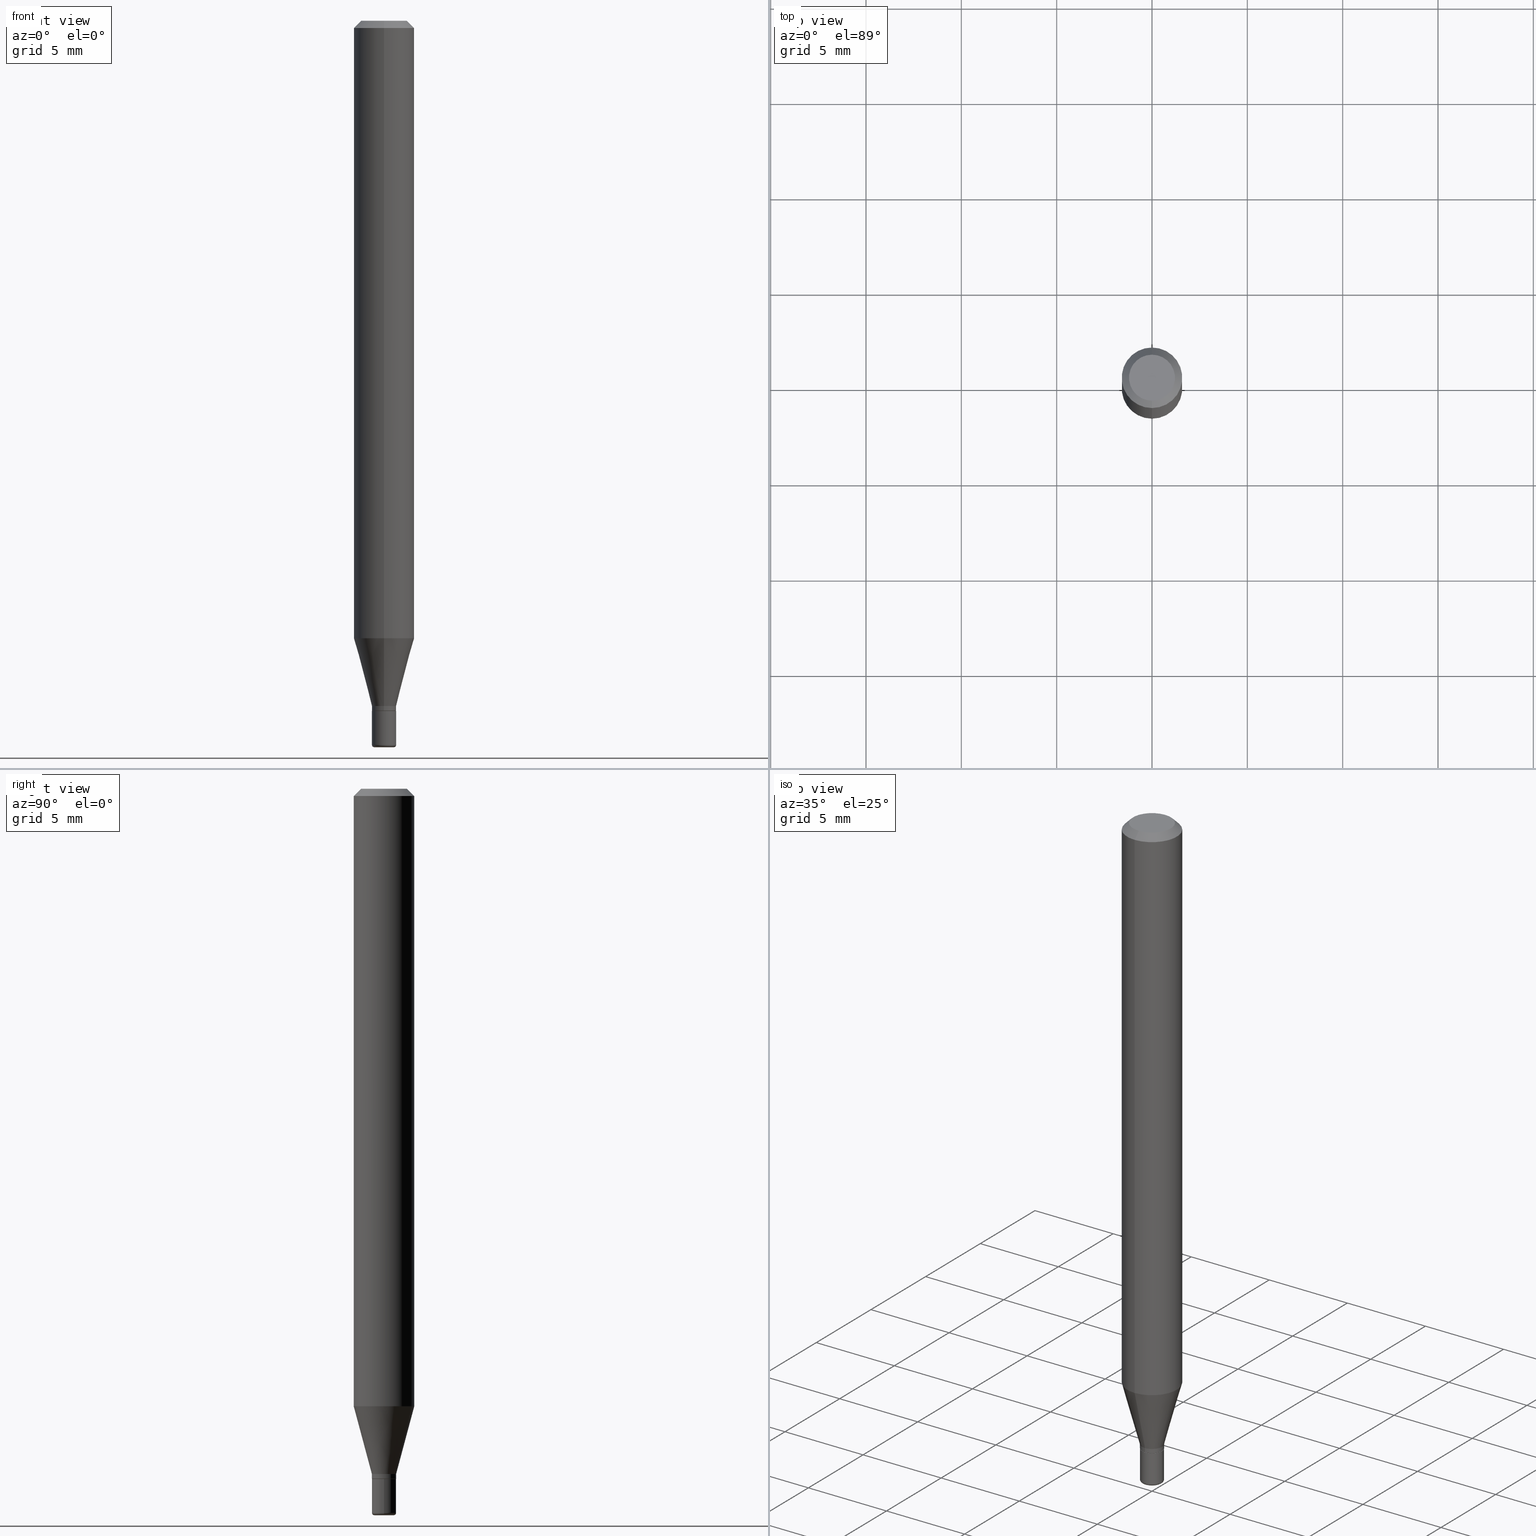
[diagram: canonical four-view strip — front | top / right | iso, engineering-drawing reading convention]
A machine part, canonical four-view strip (front | top / right | iso — engineering-drawing reading convention). The complete STEP part file that produces these views, byte-faithful:
ISO-10303-21;
HEADER;
FILE_DESCRIPTION (( 'STEP AP203' ),
    '1' );
FILE_NAME ('08521.STEP',
    '2024-02-29T19:41:16',
    ( '' ),
    ( '' ),
    'SwSTEP 2.0',
    'SolidWorks 2023',
    '' );
FILE_SCHEMA (( 'CONFIG_CONTROL_DESIGN' ));
ENDSEC;

DATA;
#1 = CARTESIAN_POINT ( 'NONE',  ( -0.02500000000000009159, 1.776356839400256973E-16, -1.229733772563731035E-30 ) ) ;
#2 = ORIENTED_EDGE ( 'NONE', *, *, #50, .T. ) ;
#3 = CIRCLE ( 'NONE', #342, 0.04750000000000000749 ) ;
#4 = AXIS2_PLACEMENT_3D ( 'NONE', #8, #80, #170 ) ;
#5 = CC_DESIGN_PERSON_AND_ORGANIZATION_ASSIGNMENT ( #497, #145, ( #191 ) ) ;
#6 =( CONVERSION_BASED_UNIT ( 'INCH', #206 ) LENGTH_UNIT ( ) NAMED_UNIT ( #450 ) );
#7 = ORIENTED_EDGE ( 'NONE', *, *, #277, .F. ) ;
#8 = CARTESIAN_POINT ( 'NONE',  ( 3.668319888636282221E-31, -5.237054916782051820E-17, -0.01499999999999970281 ) ) ;
#9 = ORIENTED_EDGE ( 'NONE', *, *, #67, .T. ) ;
#10 = DIRECTION ( 'NONE',  ( -6.982962677686265922E-15, -1.000000000000000000, 0.000000000000000000 ) ) ;
#11 = PLANE ( 'NONE',  #377 ) ;
#12 = CIRCLE ( 'NONE', #298, 0.02500000000000010200 ) ;
#13 = AXIS2_PLACEMENT_3D ( 'NONE', #132, #456, #284 ) ;
#14 = LOCAL_TIME ( 14, 41, 16.00000000000000000, #502 ) ;
#15 = DIRECTION ( 'NONE',  ( 6.982962677686265922E-15, 1.000000000000000000, -3.483106191921935554E-15 ) ) ;
#16 = ORIENTED_EDGE ( 'NONE', *, *, #187, .F. ) ;
#17 = ADVANCED_FACE ( 'NONE', ( #375 ), #514, .T. ) ;
#18 = FACE_OUTER_BOUND ( 'NONE', #400, .T. ) ;
#19 = ORIENTED_EDGE ( 'NONE', *, *, #142, .T. ) ;
#20 = COORDINATED_UNIVERSAL_TIME_OFFSET ( 5, 0, .BEHIND. ) ;
#21 = DIRECTION ( 'NONE',  ( -2.445546592424236492E-29, 3.491369944521436528E-15, 1.000000000000000000 ) ) ;
#22 = PERSON_AND_ORGANIZATION ( #287, #430 ) ;
#23 = VECTOR ( 'NONE', #476, 39.37007874015748143 ) ;
#24 = DIRECTION ( 'NONE',  ( -2.445546592424236492E-29, 3.491369944521436528E-15, 1.000000000000000000 ) ) ;
#25 = APPLICATION_PROTOCOL_DEFINITION ( 'international standard', 'config_control_design', 1994, #224 ) ;
#26 = APPROVAL ( #143, 'UNSPECIFIED' ) ;
#27 = CARTESIAN_POINT ( 'NONE',  ( 0.000000000000000000, 0.000000000000000000, 0.000000000000000000 ) ) ;
#28 = SHAPE_DEFINITION_REPRESENTATION ( #117, #319 ) ;
#29 = CARTESIAN_POINT ( 'NONE',  ( 0.000000000000000000, 0.000000000000000000, 0.000000000000000000 ) ) ;
#30 = FACE_OUTER_BOUND ( 'NONE', #155, .T. ) ;
#31 = AXIS2_PLACEMENT_3D ( 'NONE', #108, #118, #440 ) ;
#32 = ADVANCED_FACE ( 'NONE', ( #337 ), #11, .F. ) ;
#33 = DIRECTION ( 'NONE',  ( 1.000000000000000000, -6.982962677686283277E-15, 0.000000000000000000 ) ) ;
#34 = VERTEX_POINT ( 'NONE', #382 ) ;
#35 = EDGE_CURVE ( 'NONE', #439, #178, #335, .T. ) ;
#36 = DIRECTION ( 'NONE',  ( -2.445546592424236492E-29, 3.491369944521436528E-15, 1.000000000000000000 ) ) ;
#37 = VERTEX_POINT ( 'NONE', #49 ) ;
#38 = DIRECTION ( 'NONE',  ( -6.982962677686265922E-15, -1.000000000000000000, 3.491369944521436922E-15 ) ) ;
#39 = VECTOR ( 'NONE', #433, 39.37007874015748854 ) ;
#40 = AXIS2_PLACEMENT_3D ( 'NONE', #29, #306, #301 ) ;
#41 = FACE_OUTER_BOUND ( 'NONE', #449, .T. ) ;
#42 = ORIENTED_EDGE ( 'NONE', *, *, #353, .F. ) ;
#43 = DIRECTION ( 'NONE',  ( 1.000000000000000000, -6.982962677686266711E-15, 4.876176775795936353E-29 ) ) ;
#44 = DIRECTION ( 'NONE',  ( 1.000000000000000000, -6.982962677686283277E-15, 4.883557194083118506E-29 ) ) ;
#45 = DIRECTION ( 'NONE',  ( -2.445546592424236492E-29, 3.491369944521436528E-15, 1.000000000000000000 ) ) ;
#46 = CONICAL_SURFACE ( 'NONE', #231, 0.02450000000000009115, 0.7853981633972775267 ) ;
#47 = ADVANCED_FACE ( 'NONE', ( #133 ), #94, .T. ) ;
#48 = DIRECTION ( 'NONE',  ( -6.982962677686265922E-15, -1.000000000000000000, 3.483106191921935554E-15 ) ) ;
#49 = CARTESIAN_POINT ( 'NONE',  ( -3.773273898774340269E-16, -0.04750000000000000749, 4.390195805009133719E-16 ) ) ;
#50 = EDGE_CURVE ( 'NONE', #279, #136, #239, .T. ) ;
#51 = CYLINDRICAL_SURFACE ( 'NONE', #404, 0.06250000000000000000 ) ;
#52 = VERTEX_POINT ( 'NONE', #229 ) ;
#53 = CARTESIAN_POINT ( 'NONE',  ( 0.02500000000000017833, -5.394338668512662175E-15, -1.495000000000000329 ) ) ;
#54 = CARTESIAN_POINT ( 'NONE',  ( 3.484903894204537597E-29, -4.975202170943048176E-15, -1.425000000000000266 ) ) ;
#55 = AXIS2_PLACEMENT_3D ( 'NONE', #332, #323, #15 ) ;
#56 = DIRECTION ( 'NONE',  ( -2.445546592424236492E-29, 3.491369944521436528E-15, 1.000000000000000000 ) ) ;
#57 = DIRECTION ( 'NONE',  ( -6.982962677686265922E-15, -1.000000000000000000, 0.000000000000000000 ) ) ;
#58 = CYLINDRICAL_SURFACE ( 'NONE', #40, 0.06250000000000000000 ) ;
#59 = APPROVAL_ROLE ( '' ) ;
#60 = CARTESIAN_POINT ( 'NONE',  ( -1.710825856032792959E-16, -0.02450000000000506634, -1.425000000000000266 ) ) ;
#61 = AXIS2_PLACEMENT_3D ( 'NONE', #99, #475, #392 ) ;
#62 = CONICAL_SURFACE ( 'NONE', #55, 0.06250000000000000000, 0.7853981633974488341 ) ;
#63 = DIRECTION ( 'NONE',  ( 1.000000000000000000, -6.982962677686254878E-15, 0.000000000000000000 ) ) ;
#64 = PERSON_AND_ORGANIZATION ( #287, #430 ) ;
#65 = CARTESIAN_POINT ( 'NONE',  ( 0.02500000000000009159, -1.745740669421573087E-16, 1.219044193948988502E-30 ) ) ;
#66 = DIRECTION ( 'NONE',  ( -6.982962677686265922E-15, -1.000000000000000000, 0.000000000000000000 ) ) ;
#67 = EDGE_CURVE ( 'NONE', #214, #79, #347, .T. ) ;
#68 = ADVANCED_FACE ( 'NONE', ( #30 ), #58, .T. ) ;
#69 = CARTESIAN_POINT ( 'NONE',  ( 1.758593271006599579E-16, 0.02449999999999511249, -1.425000000000000266 ) ) ;
#70 = DIRECTION ( 'NONE',  ( 1.000000000000000000, -6.982962677686283277E-15, 0.000000000000000000 ) ) ;
#71 = FACE_OUTER_BOUND ( 'NONE', #518, .T. ) ;
#72 = ORIENTED_EDGE ( 'NONE', *, *, #107, .F. ) ;
#73 = DIRECTION ( 'NONE',  ( 1.000000000000000000, -6.982962677686283277E-15, 4.883557194083118506E-29 ) ) ;
#74 = CLOSED_SHELL ( 'NONE', ( #477, #324, #409, #179, #243, #124 ) ) ;
#75 = ORIENTED_EDGE ( 'NONE', *, *, #195, .F. ) ;
#76 = AXIS2_PLACEMENT_3D ( 'NONE', #237, #109, #315 ) ;
#77 = PRODUCT ( '08521', '08521', '', ( #500 ) ) ;
#78 = DIRECTION ( 'NONE',  ( -6.982962677686265922E-15, -1.000000000000000000, 0.000000000000000000 ) ) ;
#79 = VERTEX_POINT ( 'NONE', #394 ) ;
#80 = DIRECTION ( 'NONE',  ( -2.445546592424236492E-29, 3.491369944521436528E-15, 1.000000000000000000 ) ) ;
#81 = ORIENTED_EDGE ( 'NONE', *, *, #114, .T. ) ;
#82 = FACE_OUTER_BOUND ( 'NONE', #236, .T. ) ;
#83 = EDGE_LOOP ( 'NONE', ( #361, #256, #130, #75 ) ) ;
#84 = EDGE_CURVE ( 'NONE', #52, #482, #156, .T. ) ;
#85 = AXIS2_PLACEMENT_3D ( 'NONE', #129, #461, #371 ) ;
#86 = APPLICATION_CONTEXT ( 'configuration controlled 3d designs of mechanical parts and assemblies' ) ;
#87 = FACE_OUTER_BOUND ( 'NONE', #327, .T. ) ;
#88 = ORIENTED_EDGE ( 'NONE', *, *, #510, .T. ) ;
#89 = CARTESIAN_POINT ( 'NONE',  ( 3.668319888636282221E-31, -5.237054916782051820E-17, -0.01499999999999970281 ) ) ;
#90 = ORIENTED_EDGE ( 'NONE', *, *, #230, .F. ) ;
#91 = DESIGN_CONTEXT ( 'detailed design', #224, 'design' ) ;
#92 = PRODUCT_DEFINITION ( 'UNKNOWN', '', #191, #91 ) ;
#93 = EDGE_LOOP ( 'NONE', ( #406, #120, #16, #72 ) ) ;
#94 = CONICAL_SURFACE ( 'NONE', #420, 0.06250000000000000000, 0.7853981633974488341 ) ;
#95 = CIRCLE ( 'NONE', #31, 0.06250000000000000000 ) ;
#96 = DATE_AND_TIME ( #261, #499 ) ;
#97 = CARTESIAN_POINT ( 'NONE',  ( 3.483681120908324643E-29, -4.973456485970787221E-15, -1.424500000000000099 ) ) ;
#98 = PERSON_AND_ORGANIZATION ( #287, #430 ) ;
#99 = CARTESIAN_POINT ( 'NONE',  ( -0.02000000000000000042, -5.077656054418482978E-15, -1.495000000000000107 ) ) ;
#100 = PERSON_AND_ORGANIZATION ( #287, #430 ) ;
#101 = CARTESIAN_POINT ( 'NONE',  ( 3.484793048813820547E-29, -4.975360907851483175E-15, -1.425000000000000266 ) ) ;
#102 = CALENDAR_DATE ( 2024, 29, 2 ) ;
#103 = AXIS2_PLACEMENT_3D ( 'NONE', #448, #213, #44 ) ;
#104 = LOCAL_TIME ( 14, 41, 16.00000000000000000, #469 ) ;
#105 = PLANE ( 'NONE',  #289 ) ;
#106 = DIRECTION ( 'NONE',  ( -2.445546592424236773E-29, 3.491369944521436528E-15, 1.000000000000000000 ) ) ;
#107 = EDGE_CURVE ( 'NONE', #511, #365, #498, .T. ) ;
#108 = CARTESIAN_POINT ( 'NONE',  ( 3.118189523210138983E-29, -4.451664595711349999E-15, -1.275048094716167757 ) ) ;
#109 = DIRECTION ( 'NONE',  ( -2.445546592424236492E-29, 3.491369944521436528E-15, 1.000000000000000000 ) ) ;
#110 = CIRCLE ( 'NONE', #359, 0.06250000000000000000 ) ;
#111 = ORIENTED_EDGE ( 'NONE', *, *, #370, .F. ) ;
#112 = DIRECTION ( 'NONE',  ( -2.445546592424236492E-29, 3.491369944521436528E-15, 1.000000000000000000 ) ) ;
#113 = EDGE_LOOP ( 'NONE', ( #274, #111, #331, #88 ) ) ;
#114 = EDGE_CURVE ( 'NONE', #34, #511, #167, .T. ) ;
#115 = LINE ( 'NONE', #1, #23 ) ;
#116 = ORIENTED_EDGE ( 'NONE', *, *, #353, .T. ) ;
#117 = PRODUCT_DEFINITION_SHAPE ( 'NONE', 'NONE',  #92 ) ;
#118 = DIRECTION ( 'NONE',  ( -2.445546592424236492E-29, 3.491369944521436528E-15, 1.000000000000000000 ) ) ;
#119 = ADVANCED_FACE ( 'NONE', ( #468 ), #148, .T. ) ;
#120 = ORIENTED_EDGE ( 'NONE', *, *, #304, .T. ) ;
#121 = AXIS2_PLACEMENT_3D ( 'NONE', #157, #397, #38 ) ;
#122 = CARTESIAN_POINT ( 'NONE',  ( 0.02500000000000000139, -5.149934974793639843E-15, -1.425000000000000266 ) ) ;
#123 = VERTEX_POINT ( 'NONE', #472 ) ;
#124 = ADVANCED_FACE ( 'NONE', ( #258 ), #105, .F. ) ;
#125 = EDGE_CURVE ( 'NONE', #37, #123, #3, .T. ) ;
#126 = DIRECTION ( 'NONE',  ( -2.445546592424236492E-29, 3.491369944521436528E-15, 1.000000000000000000 ) ) ;
#127 = EDGE_CURVE ( 'NONE', #164, #415, #454, .T. ) ;
#128 = ORIENTED_EDGE ( 'NONE', *, *, #114, .F. ) ;
#129 = CARTESIAN_POINT ( 'NONE',  ( 3.668203209277706016E-29, -5.237222008264719754E-15, -1.500000000000000444 ) ) ;
#130 = ORIENTED_EDGE ( 'NONE', *, *, #107, .T. ) ;
#131 = UNCERTAINTY_MEASURE_WITH_UNIT (LENGTH_MEASURE( 1.000000000000000082E-05 ), #6, 'distance_accuracy_value', 'NONE');
#132 = CARTESIAN_POINT ( 'NONE',  ( -6.680732152424787162E-45, 9.537707241656864652E-31, 2.731795081361451486E-16 ) ) ;
#133 = FACE_OUTER_BOUND ( 'NONE', #113, .T. ) ;
#134 = DIRECTION ( 'NONE',  ( -2.445546592424236492E-29, 3.491369944521436528E-15, 1.000000000000000000 ) ) ;
#135 = ORIENTED_EDGE ( 'NONE', *, *, #233, .F. ) ;
#136 = VERTEX_POINT ( 'NONE', #60 ) ;
#137 = VECTOR ( 'NONE', #492, 39.37007874015748854 ) ;
#138 = CIRCLE ( 'NONE', #248, 0.02500000000000010200 ) ;
#139 = CARTESIAN_POINT ( 'NONE',  ( 0.000000000000000000, 0.000000000000000000, 0.000000000000000000 ) ) ;
#140 = CC_DESIGN_PERSON_AND_ORGANIZATION_ASSIGNMENT ( #98, #302, ( #77 ) ) ;
#141 = CARTESIAN_POINT ( 'NONE',  ( 0.02000000000000000042, -5.359423855124228949E-15, -1.495000000000000107 ) ) ;
#142 = EDGE_CURVE ( 'NONE', #178, #238, #153, .T. ) ;
#143 = APPROVAL_STATUS ( 'not_yet_approved' ) ;
#144 = FACE_OUTER_BOUND ( 'NONE', #83, .T. ) ;
#145 = PERSON_AND_ORGANIZATION_ROLE ( 'design_supplier' ) ;
#146 = DIRECTION ( 'NONE',  ( -2.445468806185136597E-29, 3.491481338843145583E-15, 1.000000000000000000 ) ) ;
#147 = CC_DESIGN_DATE_AND_TIME_ASSIGNMENT ( #96, #185, ( #437 ) ) ;
#148 = CONICAL_SURFACE ( 'NONE', #388, 0.02500000000000010200, 0.2617993877991493523 ) ;
#149 = APPROVAL_ROLE ( '' ) ;
#150 = VECTOR ( 'NONE', #208, 39.37007874015748143 ) ;
#151 = APPROVAL_PERSON_ORGANIZATION ( #64, #416, #59 ) ;
#152 = DIRECTION ( 'NONE',  ( -2.445546592424236492E-29, 3.491369944521436528E-15, 1.000000000000000000 ) ) ;
#153 = LINE ( 'NONE', #349, #358 ) ;
#154 = CARTESIAN_POINT ( 'NONE',  ( -1.710825856032792959E-16, -0.02450000000000506634, -1.425000000000000266 ) ) ;
#155 = EDGE_LOOP ( 'NONE', ( #363, #19, #242, #286 ) ) ;
#156 = CIRCLE ( 'NONE', #334, 0.02500000000000009159 ) ;
#157 = CARTESIAN_POINT ( 'NONE',  ( 0.000000000000000000, 0.000000000000000000, 0.000000000000000000 ) ) ;
#158 = CIRCLE ( 'NONE', #4, 0.06250000000000000000 ) ;
#159 = ORIENTED_EDGE ( 'NONE', *, *, #84, .T. ) ;
#160 = LINE ( 'NONE', #241, #168 ) ;
#161 = EDGE_LOOP ( 'NONE', ( #447, #441 ) ) ;
#162 = EDGE_CURVE ( 'NONE', #214, #439, #12, .T. ) ;
#163 = DIRECTION ( 'NONE',  ( -2.445546592424236492E-29, 3.491369944521436528E-15, 1.000000000000000000 ) ) ;
#164 = VERTEX_POINT ( 'NONE', #266 ) ;
#165 = CC_DESIGN_PERSON_AND_ORGANIZATION_ASSIGNMENT ( #183, #424, ( #191 ) ) ;
#166 = CARTESIAN_POINT ( 'NONE',  ( 3.118189523210138983E-29, -4.451664595711349999E-15, -1.275048094716167757 ) ) ;
#167 = CIRCLE ( 'NONE', #463, 0.005000000000000177046 ) ;
#168 = VECTOR ( 'NONE', #442, 39.37007874015748143 ) ;
#169 = EDGE_CURVE ( 'NONE', #52, #214, #221, .T. ) ;
#170 = DIRECTION ( 'NONE',  ( -6.982962677686265922E-15, -1.000000000000000000, 3.483106191921935554E-15 ) ) ;
#171 = EDGE_LOOP ( 'NONE', ( #253, #205, #9, #245 ) ) ;
#172 = EDGE_LOOP ( 'NONE', ( #316, #373, #411, #251 ) ) ;
#173 = DIRECTION ( 'NONE',  ( 5.024295867787204109E-15, 0.7071067811864292230, 0.7071067811866658115 ) ) ;
#174 = CC_DESIGN_PERSON_AND_ORGANIZATION_ASSIGNMENT ( #223, #393, ( #92 ) ) ;
#175 = ORIENTED_EDGE ( 'NONE', *, *, #408, .T. ) ;
#176 = CARTESIAN_POINT ( 'NONE',  ( 3.316907271900976589E-16, 0.04750000000000000749, -2.925031829669569822E-17 ) ) ;
#177 = ORIENTED_EDGE ( 'NONE', *, *, #460, .F. ) ;
#178 = VERTEX_POINT ( 'NONE', #345 ) ;
#179 = ADVANCED_FACE ( 'NONE', ( #144 ), #303, .T. ) ;
#180 = CARTESIAN_POINT ( 'NONE',  ( -6.680732152424787162E-45, 9.537707241656864652E-31, 2.731795081361451486E-16 ) ) ;
#181 = VECTOR ( 'NONE', #184, 39.37007874015748143 ) ;
#182 = AXIS2_PLACEMENT_3D ( 'NONE', #419, #56, #10 ) ;
#183 = PERSON_AND_ORGANIZATION ( #287, #430 ) ;
#184 = DIRECTION ( 'NONE',  ( -2.445468806185136877E-29, 3.491481338843145188E-15, 1.000000000000000000 ) ) ;
#185 = DATE_TIME_ROLE ( 'classification_date' ) ;
#186 = DIRECTION ( 'NONE',  ( -2.445468806185136597E-29, 3.491481338843145583E-15, 1.000000000000000000 ) ) ;
#187 = EDGE_CURVE ( 'NONE', #365, #462, #215, .T. ) ;
#188 = CALENDAR_DATE ( 2024, 29, 2 ) ;
#189 = CARTESIAN_POINT ( 'NONE',  ( 3.460448428280295330E-29, -4.940288471497833014E-15, -1.415000000000000258 ) ) ;
#190 = AXIS2_PLACEMENT_3D ( 'NONE', #399, #354, #78 ) ;
#191 = PRODUCT_DEFINITION_FORMATION_WITH_SPECIFIED_SOURCE ( 'ANY', '', #77, .NOT_KNOWN. ) ;
#192 = DIRECTION ( 'NONE',  ( 1.000000000000000000, -6.982962677686280121E-15, 0.000000000000000000 ) ) ;
#193 = CYLINDRICAL_SURFACE ( 'NONE', #121, 0.02500000000000009506 ) ;
#194 = FACE_OUTER_BOUND ( 'NONE', #93, .T. ) ;
#195 = EDGE_CURVE ( 'NONE', #462, #365, #263, .T. ) ;
#196 = ORIENTED_EDGE ( 'NONE', *, *, #84, .F. ) ;
#197 = MANIFOLD_SOLID_BREP ( 'Body-Move/Copy2[2]', #505 ) ;
#198 = AXIS2_PLACEMENT_3D ( 'NONE', #27, #503, #470 ) ;
#199 = CARTESIAN_POINT ( 'NONE',  ( 3.655975865246779122E-29, -5.219764601570503141E-15, -1.495000000000000107 ) ) ;
#200 = CIRCLE ( 'NONE', #378, 0.02000000000000000042 ) ;
#201 = ORIENTED_EDGE ( 'NONE', *, *, #311, .F. ) ;
#202 = LOCAL_TIME ( 14, 41, 16.00000000000000000, #20 ) ;
#203 = DIRECTION ( 'NONE',  ( -2.445546592424236492E-29, 3.491369944521436528E-15, 1.000000000000000000 ) ) ;
#204 = DIRECTION ( 'NONE',  ( -6.982962677686265922E-15, -1.000000000000000000, 0.000000000000000000 ) ) ;
#205 = ORIENTED_EDGE ( 'NONE', *, *, #255, .T. ) ;
#206 = LENGTH_MEASURE_WITH_UNIT ( LENGTH_MEASURE( 0.02539999999999999897 ), #330 );
#207 = DIRECTION ( 'NONE',  ( -2.445546592424236212E-29, 3.491369944521436528E-15, 1.000000000000000000 ) ) ;
#208 = DIRECTION ( 'NONE',  ( 4.937700262164550409E-15, 0.7071067811865454633, -0.7071067811865495711 ) ) ;
#209 = CARTESIAN_POINT ( 'NONE',  ( 3.668319888636282221E-31, -5.237054916782051820E-17, -0.01499999999999970281 ) ) ;
#210 = EDGE_CURVE ( 'NONE', #511, #415, #343, .T. ) ;
#211 = CARTESIAN_POINT ( 'NONE',  ( -0.02500000000000017833, -4.919927070770967165E-15, -1.495000000000000329 ) ) ;
#212 = EDGE_LOOP ( 'NONE', ( #369, #297, #465, #283 ) ) ;
#213 = DIRECTION ( 'NONE',  ( -2.445468806185136597E-29, 3.491481338843145583E-15, 1.000000000000000000 ) ) ;
#214 = VERTEX_POINT ( 'NONE', #282 ) ;
#215 = CIRCLE ( 'NONE', #429, 0.02500000000000000139 ) ;
#216 = CARTESIAN_POINT ( 'NONE',  ( 0.000000000000000000, 0.000000000000000000, 0.000000000000000000 ) ) ;
#217 = EDGE_LOOP ( 'NONE', ( #496, #457, #196, #135 ) ) ;
#218 = CALENDAR_DATE ( 2024, 29, 2 ) ;
#219 = DIRECTION ( 'NONE',  ( -6.982962677686265922E-15, -1.000000000000000000, 0.000000000000000000 ) ) ;
#220 = PERSON_AND_ORGANIZATION_ROLE ( 'classification_officer' ) ;
#221 = LINE ( 'NONE', #267, #444 ) ;
#222 = TOROIDAL_SURFACE ( 'NONE', #103, 0.02000000000000000042, 0.005000000000000179648 ) ;
#223 = PERSON_AND_ORGANIZATION ( #287, #430 ) ;
#224 = APPLICATION_CONTEXT ( 'configuration controlled 3d designs of mechanical parts and assemblies' ) ;
#225 = CARTESIAN_POINT ( 'NONE',  ( 3.484793048813820547E-29, -4.975360907851483175E-15, -1.425000000000000266 ) ) ;
#226 = DATE_AND_TIME ( #308, #202 ) ;
#227 = DIRECTION ( 'NONE',  ( -6.982962677686266711E-15, -1.000000000000000000, 3.491481338843145583E-15 ) ) ;
#228 = ADVANCED_FACE ( 'NONE', ( #235 ), #473, .T. ) ;
#229 = CARTESIAN_POINT ( 'NONE',  ( -1.745740669421230426E-16, -0.02500000000000515352, -1.424500000000000099 ) ) ;
#230 = EDGE_CURVE ( 'NONE', #482, #439, #481, .T. ) ;
#231 = AXIS2_PLACEMENT_3D ( 'NONE', #360, #203, #313 ) ;
#232 = CYLINDRICAL_SURFACE ( 'NONE', #485, 0.02500000000000009159 ) ;
#233 = EDGE_CURVE ( 'NONE', #136, #52, #509, .T. ) ;
#234 = ADVANCED_FACE ( 'NONE', ( #479 ), #46, .T. ) ;
#235 = FACE_OUTER_BOUND ( 'NONE', #171, .T. ) ;
#236 = EDGE_LOOP ( 'NONE', ( #325, #339, #175, #488 ) ) ;
#237 = CARTESIAN_POINT ( 'NONE',  ( 0.000000000000000000, 0.000000000000000000, 0.000000000000000000 ) ) ;
#238 = VERTEX_POINT ( 'NONE', #272 ) ;
#239 = CIRCLE ( 'NONE', #395, 0.02450000000000009115 ) ;
#240 = AXIS2_PLACEMENT_3D ( 'NONE', #199, #364, #73 ) ;
#241 = CARTESIAN_POINT ( 'NONE',  ( -4.287811248607203282E-16, -0.06250000000000005551, -0.01499999999999948597 ) ) ;
#242 = ORIENTED_EDGE ( 'NONE', *, *, #408, .F. ) ;
#243 = ADVANCED_FACE ( 'NONE', ( #71 ), #366, .T. ) ;
#244 = DIRECTION ( 'NONE',  ( -4.937700262163704750E-15, -0.7071067811864243380, 0.7071067811866706965 ) ) ;
#245 = ORIENTED_EDGE ( 'NONE', *, *, #312, .F. ) ;
#246 = DIRECTION ( 'NONE',  ( 1.000000000000000000, -6.982962677686284065E-15, 0.000000000000000000 ) ) ;
#247 = EDGE_LOOP ( 'NONE', ( #177, #2, #276, #7 ) ) ;
#248 = AXIS2_PLACEMENT_3D ( 'NONE', #317, #36, #401 ) ;
#249 = CC_DESIGN_SECURITY_CLASSIFICATION ( #437, ( #191 ) ) ;
#250 = DIRECTION ( 'NONE',  ( 2.445546592424236212E-29, -3.491369944521436528E-15, -1.000000000000000000 ) ) ;
#251 = ORIENTED_EDGE ( 'NONE', *, *, #510, .F. ) ;
#252 = DIRECTION ( 'NONE',  ( -1.000000000000000000, 6.982962677686265922E-15, -4.876176775795935793E-29 ) ) ;
#253 = ORIENTED_EDGE ( 'NONE', *, *, #35, .F. ) ;
#254 =( NAMED_UNIT ( * ) PLANE_ANGLE_UNIT ( ) SI_UNIT ( $, .RADIAN. ) );
#255 = EDGE_CURVE ( 'NONE', #439, #214, #138, .T. ) ;
#256 = ORIENTED_EDGE ( 'NONE', *, *, #311, .T. ) ;
#257 = SECURITY_CLASSIFICATION_LEVEL ( 'unclassified' ) ;
#258 = FACE_OUTER_BOUND ( 'NONE', #285, .T. ) ;
#259 = DATE_AND_TIME ( #188, #413 ) ;
#260 = CARTESIAN_POINT ( 'NONE',  ( 3.460448428280295330E-29, -4.940288471497833014E-15, -1.415000000000000258 ) ) ;
#261 = CALENDAR_DATE ( 2024, 29, 2 ) ;
#262 = DIRECTION ( 'NONE',  ( 1.000000000000000000, -6.982962677686254878E-15, 0.000000000000000000 ) ) ;
#263 = CIRCLE ( 'NONE', #333, 0.02500000000000000139 ) ;
#264 = AXIS2_PLACEMENT_3D ( 'NONE', #483, #275, #33 ) ;
#265 = APPROVAL_DATE_TIME ( #391, #293 ) ;
#266 = CARTESIAN_POINT ( 'NONE',  ( -0.02000000000000000042, -5.068621189371588369E-15, -1.500000000000000444 ) ) ;
#267 = CARTESIAN_POINT ( 'NONE',  ( -1.745740669421573087E-16, -0.02500000000000009506, 8.728424861303625339E-17 ) ) ;
#268 = FACE_OUTER_BOUND ( 'NONE', #290, .T. ) ;
#269 = EDGE_CURVE ( 'NONE', #79, #178, #110, .T. ) ;
#270 = VECTOR ( 'NONE', #278, 39.37007874015748143 ) ;
#271 = APPROVAL_PERSON_ORGANIZATION ( #22, #293, #149 ) ;
#272 = CARTESIAN_POINT ( 'NONE',  ( 4.440892098500939734E-16, 0.06249999999999995143, -0.01499999999999992138 ) ) ;
#273 = ADVANCED_FACE ( 'NONE', ( #41 ), #320, .T. ) ;
#274 = ORIENTED_EDGE ( 'NONE', *, *, #351, .F. ) ;
#275 = DIRECTION ( 'NONE',  ( -2.445468806185136597E-29, 3.491481338843145583E-15, 1.000000000000000000 ) ) ;
#276 = ORIENTED_EDGE ( 'NONE', *, *, #233, .T. ) ;
#277 = EDGE_CURVE ( 'NONE', #482, #52, #389, .T. ) ;
#278 = DIRECTION ( 'NONE',  ( -2.445546592424236773E-29, 3.491369944521436528E-15, 1.000000000000000000 ) ) ;
#279 = VERTEX_POINT ( 'NONE', #69 ) ;
#280 = AXIS2_PLACEMENT_3D ( 'NONE', #54, #45, #57 ) ;
#281 =( GEOMETRIC_REPRESENTATION_CONTEXT ( 3 ) GLOBAL_UNCERTAINTY_ASSIGNED_CONTEXT ( ( #131 ) ) GLOBAL_UNIT_ASSIGNED_CONTEXT ( ( #6, #254, #344 ) ) REPRESENTATION_CONTEXT ( 'NONE', 'WORKASPACE' ) );
#282 = CARTESIAN_POINT ( 'NONE',  ( -1.745740669421227467E-16, -0.02500000000000503902, -1.415000000000000258 ) ) ;
#283 = ORIENTED_EDGE ( 'NONE', *, *, #67, .F. ) ;
#284 = DIRECTION ( 'NONE',  ( -6.982962677686265133E-15, -1.000000000000000000, 3.491369944521436133E-15 ) ) ;
#285 = EDGE_LOOP ( 'NONE', ( #42, #321 ) ) ;
#286 = ORIENTED_EDGE ( 'NONE', *, *, #329, .F. ) ;
#287 = PERSON ( 'UNSPECIFIED', 'UNSPECIFIED', 'UNSPECIFIED', ('UNSPECIFIED'), ('UNSPECIFIED'), ('UNSPECIFIED') ) ;
#288 = DIRECTION ( 'NONE',  ( 2.438088387897960049E-29, -3.491481338843145188E-15, -1.000000000000000000 ) ) ;
#289 = AXIS2_PLACEMENT_3D ( 'NONE', #384, #309, #352 ) ;
#290 = EDGE_LOOP ( 'NONE', ( #90, #516, #513, #484 ) ) ;
#291 = CARTESIAN_POINT ( 'NONE',  ( 1.776356839400599141E-16, 0.02499999999999502967, -1.424500000000000099 ) ) ;
#292 = DIRECTION ( 'NONE',  ( 2.445546592424236492E-29, -3.491369944521436528E-15, -1.000000000000000000 ) ) ;
#293 = APPROVAL ( #346, 'UNSPECIFIED' ) ;
#294 = CARTESIAN_POINT ( 'NONE',  ( 1.740829702612600017E-16, 0.02449999999999511249, -1.425000000000000266 ) ) ;
#295 = CARTESIAN_POINT ( 'NONE',  ( 1.776356839400603332E-16, 0.02499999999999516151, -1.415000000000000258 ) ) ;
#296 = APPROVAL_STATUS ( 'not_yet_approved' ) ;
#297 = ORIENTED_EDGE ( 'NONE', *, *, #35, .T. ) ;
#298 = AXIS2_PLACEMENT_3D ( 'NONE', #260, #427, #501 ) ;
#299 = AXIS2_PLACEMENT_3D ( 'NONE', #390, #146, #70 ) ;
#300 = APPROVAL_ROLE ( '' ) ;
#301 = DIRECTION ( 'NONE',  ( -6.982962677686265922E-15, -1.000000000000000000, 3.491369944521436528E-15 ) ) ;
#302 = PERSON_AND_ORGANIZATION_ROLE ( 'design_owner' ) ;
#303 = CYLINDRICAL_SURFACE ( 'NONE', #198, 0.02500000000000009159 ) ;
#304 = EDGE_CURVE ( 'NONE', #415, #462, #115, .T. ) ;
#305 = COORDINATED_UNIVERSAL_TIME_OFFSET ( 5, 0, .BEHIND. ) ;
#306 = DIRECTION ( 'NONE',  ( -2.445546592424236492E-29, 3.491369944521436528E-15, 1.000000000000000000 ) ) ;
#307 = CIRCLE ( 'NONE', #182, 0.02450000000000009115 ) ;
#308 = CALENDAR_DATE ( 2024, 29, 2 ) ;
#309 = DIRECTION ( 'NONE',  ( -2.438088387897960049E-29, 3.491481338843145188E-15, 1.000000000000000000 ) ) ;
#310 = CARTESIAN_POINT ( 'NONE',  ( -1.745740669421227467E-16, -0.02500000000000503902, -1.415000000000000258 ) ) ;
#311 = EDGE_CURVE ( 'NONE', #415, #511, #436, .T. ) ;
#312 = EDGE_CURVE ( 'NONE', #178, #79, #95, .T. ) ;
#313 = DIRECTION ( 'NONE',  ( -6.982962677686265922E-15, -1.000000000000000000, 0.000000000000000000 ) ) ;
#314 = VECTOR ( 'NONE', #173, 39.37007874015748143 ) ;
#315 = DIRECTION ( 'NONE',  ( -6.982962677686265922E-15, -1.000000000000000000, 3.491369944521436922E-15 ) ) ;
#316 = ORIENTED_EDGE ( 'NONE', *, *, #142, .F. ) ;
#317 = CARTESIAN_POINT ( 'NONE',  ( 3.460448428280295330E-29, -4.940288471497833014E-15, -1.415000000000000258 ) ) ;
#318 = ORIENTED_EDGE ( 'NONE', *, *, #169, .F. ) ;
#319 = ADVANCED_BREP_SHAPE_REPRESENTATION ( '08521', ( #372, #197, #350 ), #281 ) ;
#320 = CYLINDRICAL_SURFACE ( 'NONE', #76, 0.02500000000000009506 ) ;
#321 = ORIENTED_EDGE ( 'NONE', *, *, #507, .F. ) ;
#322 = VECTOR ( 'NONE', #434, 39.37007874015748143 ) ;
#323 = DIRECTION ( 'NONE',  ( 2.445546592424236492E-29, -3.491369944521436528E-15, -1.000000000000000000 ) ) ;
#324 = ADVANCED_FACE ( 'NONE', ( #194 ), #232, .T. ) ;
#325 = ORIENTED_EDGE ( 'NONE', *, *, #125, .F. ) ;
#326 = CARTESIAN_POINT ( 'NONE',  ( -0.02500000000000000139, -4.919927070770967954E-15, -1.425000000000000266 ) ) ;
#327 = EDGE_LOOP ( 'NONE', ( #116, #379, #357, #128 ) ) ;
#328 = ADVANCED_FACE ( 'NONE', ( #268 ), #193, .T. ) ;
#329 = EDGE_CURVE ( 'NONE', #79, #398, #362, .T. ) ;
#330 =( LENGTH_UNIT ( ) NAMED_UNIT ( * ) SI_UNIT ( $, .METRE. ) );
#331 = ORIENTED_EDGE ( 'NONE', *, *, #487, .T. ) ;
#332 = CARTESIAN_POINT ( 'NONE',  ( 3.668319888636282221E-31, -5.237054916782051820E-17, -0.01499999999999970281 ) ) ;
#333 = AXIS2_PLACEMENT_3D ( 'NONE', #225, #428, #63 ) ;
#334 = AXIS2_PLACEMENT_3D ( 'NONE', #97, #152, #341 ) ;
#335 = LINE ( 'NONE', #295, #137 ) ;
#336 = APPROVAL_PERSON_ORGANIZATION ( #471, #26, #300 ) ;
#337 = FACE_OUTER_BOUND ( 'NONE', #161, .T. ) ;
#338 = APPLICATION_PROTOCOL_DEFINITION ( 'international standard', 'config_control_design', 1994, #86 ) ;
#339 = ORIENTED_EDGE ( 'NONE', *, *, #351, .T. ) ;
#340 = APPROVAL_DATE_TIME ( #226, #416 ) ;
#341 = DIRECTION ( 'NONE',  ( -6.982962677686265922E-15, -1.000000000000000000, 0.000000000000000000 ) ) ;
#342 = AXIS2_PLACEMENT_3D ( 'NONE', #180, #508, #432 ) ;
#343 = CIRCLE ( 'NONE', #299, 0.02500000000000017833 ) ;
#344 =( NAMED_UNIT ( * ) SI_UNIT ( $, .STERADIAN. ) SOLID_ANGLE_UNIT ( ) );
#345 = CARTESIAN_POINT ( 'NONE',  ( 4.440892098500935790E-16, 0.06249999999999553135, -1.275048094716167979 ) ) ;
#346 = APPROVAL_STATUS ( 'not_yet_approved' ) ;
#347 = LINE ( 'NONE', #310, #39 ) ;
#348 = APPROVAL_DATE_TIME ( #383, #26 ) ;
#349 = CARTESIAN_POINT ( 'NONE',  ( 4.440892098500625669E-16, 0.06250000000000000000, -2.182106215325897830E-16 ) ) ;
#350 = AXIS2_PLACEMENT_3D ( 'NONE', #139, #431, #467 ) ;
#351 = EDGE_CURVE ( 'NONE', #37, #398, #160, .T. ) ;
#352 = DIRECTION ( 'NONE',  ( 1.000000000000000000, -6.982962677686265922E-15, 4.876176775795935793E-29 ) ) ;
#353 = EDGE_CURVE ( 'NONE', #34, #164, #200, .T. ) ;
#354 = DIRECTION ( 'NONE',  ( -2.445546592424236492E-29, 3.491369944521436528E-15, 1.000000000000000000 ) ) ;
#355 = ORIENTED_EDGE ( 'NONE', *, *, #162, .F. ) ;
#356 = CARTESIAN_POINT ( 'NONE',  ( 0.000000000000000000, 0.000000000000000000, 0.000000000000000000 ) ) ;
#357 = ORIENTED_EDGE ( 'NONE', *, *, #210, .F. ) ;
#358 = VECTOR ( 'NONE', #106, 39.37007874015748143 ) ;
#359 = AXIS2_PLACEMENT_3D ( 'NONE', #166, #163, #407 ) ;
#360 = CARTESIAN_POINT ( 'NONE',  ( 3.484903894204537597E-29, -4.975202170943048176E-15, -1.425000000000000266 ) ) ;
#361 = ORIENTED_EDGE ( 'NONE', *, *, #304, .F. ) ;
#362 = LINE ( 'NONE', #515, #270 ) ;
#363 = ORIENTED_EDGE ( 'NONE', *, *, #269, .T. ) ;
#364 = DIRECTION ( 'NONE',  ( -2.445468806185136597E-29, 3.491481338843145583E-15, 1.000000000000000000 ) ) ;
#365 = VERTEX_POINT ( 'NONE', #122 ) ;
#366 = TOROIDAL_SURFACE ( 'NONE', #240, 0.02000000000000000042, 0.005000000000000179648 ) ;
#367 = DIRECTION ( 'NONE',  ( 6.982962677686265922E-15, 1.000000000000000000, -3.491369944521436528E-15 ) ) ;
#368 = CC_DESIGN_APPROVAL ( #416, ( #191 ) ) ;
#369 = ORIENTED_EDGE ( 'NONE', *, *, #162, .T. ) ;
#370 = EDGE_CURVE ( 'NONE', #123, #37, #491, .T. ) ;
#371 = DIRECTION ( 'NONE',  ( 1.000000000000000000, -6.982962677686284065E-15, 0.000000000000000000 ) ) ;
#372 = MANIFOLD_SOLID_BREP ( 'Body-Move/Copy2[1]', #74 ) ;
#373 = ORIENTED_EDGE ( 'NONE', *, *, #312, .T. ) ;
#374 = CARTESIAN_POINT ( 'NONE',  ( 3.108624468950771410E-16, 0.02499999999999516151, -1.415000000000000258 ) ) ;
#375 = FACE_OUTER_BOUND ( 'NONE', #247, .T. ) ;
#376 = CARTESIAN_POINT ( 'NONE',  ( -4.364351673553912750E-16, -0.06250000000000005551, -0.01499999999999948597 ) ) ;
#377 = AXIS2_PLACEMENT_3D ( 'NONE', #494, #207, #414 ) ;
#378 = AXIS2_PLACEMENT_3D ( 'NONE', #405, #517, #246 ) ;
#379 = ORIENTED_EDGE ( 'NONE', *, *, #127, .T. ) ;
#380 = CC_DESIGN_APPROVAL ( #293, ( #437 ) ) ;
#381 = LINE ( 'NONE', #489, #150 ) ;
#382 = CARTESIAN_POINT ( 'NONE',  ( 0.02000000000000000042, -5.376881261818445562E-15, -1.500000000000000444 ) ) ;
#383 = DATE_AND_TIME ( #218, #104 ) ;
#384 = CARTESIAN_POINT ( 'NONE',  ( 3.582686580359767159E-29, -5.359686688179454114E-15, -1.500000000000000444 ) ) ;
#385 = COORDINATED_UNIVERSAL_TIME_OFFSET ( 5, 0, .BEHIND. ) ;
#386 = ADVANCED_FACE ( 'NONE', ( #410 ), #51, .T. ) ;
#387 = DIRECTION ( 'NONE',  ( -2.445546592424236773E-29, 3.491369944521436528E-15, 1.000000000000000000 ) ) ;
#388 = AXIS2_PLACEMENT_3D ( 'NONE', #189, #21, #219 ) ;
#389 = CIRCLE ( 'NONE', #421, 0.02500000000000009159 ) ;
#390 = CARTESIAN_POINT ( 'NONE',  ( 3.655975865246779683E-29, -5.219764601570503930E-15, -1.495000000000000329 ) ) ;
#391 = DATE_AND_TIME ( #102, #14 ) ;
#392 = DIRECTION ( 'NONE',  ( -1.000000000000000000, 7.105427357601061812E-15, 0.000000000000000000 ) ) ;
#393 = PERSON_AND_ORGANIZATION_ROLE ( 'creator' ) ;
#394 = CARTESIAN_POINT ( 'NONE',  ( -4.364351673553606080E-16, -0.06250000000000446865, -1.275048094716167535 ) ) ;
#395 = AXIS2_PLACEMENT_3D ( 'NONE', #425, #24, #66 ) ;
#396 = AXIS2_PLACEMENT_3D ( 'NONE', #176, #250, #367 ) ;
#397 = DIRECTION ( 'NONE',  ( -2.445546592424236492E-29, 3.491369944521436528E-15, 1.000000000000000000 ) ) ;
#398 = VERTEX_POINT ( 'NONE', #376 ) ;
#399 = CARTESIAN_POINT ( 'NONE',  ( 3.460448428280295330E-29, -4.940288471497833014E-15, -1.415000000000000258 ) ) ;
#400 = EDGE_LOOP ( 'NONE', ( #418, #459 ) ) ;
#401 = DIRECTION ( 'NONE',  ( -6.982962677686265922E-15, -1.000000000000000000, 0.000000000000000000 ) ) ;
#402 = ORIENTED_EDGE ( 'NONE', *, *, #127, .F. ) ;
#403 = AXIS2_PLACEMENT_3D ( 'NONE', #412, #288, #252 ) ;
#404 = AXIS2_PLACEMENT_3D ( 'NONE', #216, #134, #458 ) ;
#405 = CARTESIAN_POINT ( 'NONE',  ( 3.668203209277706016E-29, -5.237222008264719754E-15, -1.500000000000000444 ) ) ;
#406 = ORIENTED_EDGE ( 'NONE', *, *, #210, .T. ) ;
#407 = DIRECTION ( 'NONE',  ( -6.982962677686265922E-15, -1.000000000000000000, 4.370956789862821150E-15 ) ) ;
#408 = EDGE_CURVE ( 'NONE', #398, #238, #464, .T. ) ;
#409 = ADVANCED_FACE ( 'NONE', ( #18 ), #451, .F. ) ;
#410 = FACE_OUTER_BOUND ( 'NONE', #172, .T. ) ;
#411 = ORIENTED_EDGE ( 'NONE', *, *, #329, .T. ) ;
#412 = CARTESIAN_POINT ( 'NONE',  ( 1.745740669421915009E-16, 0.02499999999999502620, -1.425000000000000266 ) ) ;
#413 = LOCAL_TIME ( 14, 41, 16.00000000000000000, #305 ) ;
#414 = DIRECTION ( 'NONE',  ( -6.982962677686265922E-15, -1.000000000000000000, 3.491369944521436528E-15 ) ) ;
#415 = VERTEX_POINT ( 'NONE', #211 ) ;
#416 = APPROVAL ( #296, 'UNSPECIFIED' ) ;
#417 = PLANE ( 'NONE',  #396 ) ;
#418 = ORIENTED_EDGE ( 'NONE', *, *, #187, .T. ) ;
#419 = CARTESIAN_POINT ( 'NONE',  ( 3.484903894204537597E-29, -4.975202170943048176E-15, -1.425000000000000266 ) ) ;
#420 = AXIS2_PLACEMENT_3D ( 'NONE', #209, #292, #506 ) ;
#421 = AXIS2_PLACEMENT_3D ( 'NONE', #438, #112, #204 ) ;
#422 = EDGE_LOOP ( 'NONE', ( #443, #490 ) ) ;
#423 = ADVANCED_FACE ( 'NONE', ( #82 ), #62, .T. ) ;
#424 = PERSON_AND_ORGANIZATION_ROLE ( 'creator' ) ;
#425 = CARTESIAN_POINT ( 'NONE',  ( 3.484903894204537597E-29, -4.975202170943048176E-15, -1.425000000000000266 ) ) ;
#426 = DATE_TIME_ROLE ( 'creation_date' ) ;
#427 = DIRECTION ( 'NONE',  ( -2.445546592424236492E-29, 3.491369944521436528E-15, 1.000000000000000000 ) ) ;
#428 = DIRECTION ( 'NONE',  ( -2.445468806185136597E-29, 3.491481338843145583E-15, 1.000000000000000000 ) ) ;
#429 = AXIS2_PLACEMENT_3D ( 'NONE', #101, #186, #262 ) ;
#430 = ORGANIZATION ( 'UNSPECIFIED', 'UNSPECIFIED', '' ) ;
#431 = DIRECTION ( 'NONE',  ( 0.000000000000000000, 0.000000000000000000, 1.000000000000000000 ) ) ;
#432 = DIRECTION ( 'NONE',  ( -6.982962677686265133E-15, -1.000000000000000000, 3.491369944521436133E-15 ) ) ;
#433 = DIRECTION ( 'NONE',  ( -1.807323732225323434E-15, -0.2588190451025172423, 0.9659258262890690894 ) ) ;
#434 = DIRECTION ( 'NONE',  ( -2.445546592424236773E-29, 3.491369944521436528E-15, 1.000000000000000000 ) ) ;
#435 = PRODUCT_RELATED_PRODUCT_CATEGORY ( 'detail', '', ( #77 ) ) ;
#436 = CIRCLE ( 'NONE', #264, 0.02500000000000017833 ) ;
#437 = SECURITY_CLASSIFICATION ( '', '', #257 ) ;
#438 = CARTESIAN_POINT ( 'NONE',  ( 3.483681120908324643E-29, -4.973456485970787221E-15, -1.424500000000000099 ) ) ;
#439 = VERTEX_POINT ( 'NONE', #374 ) ;
#440 = DIRECTION ( 'NONE',  ( -6.982962677686265922E-15, -1.000000000000000000, 4.370956789862821150E-15 ) ) ;
#441 = ORIENTED_EDGE ( 'NONE', *, *, #50, .F. ) ;
#442 = DIRECTION ( 'NONE',  ( -4.851104656540966641E-15, -0.7071067811865503483, -0.7071067811865446862 ) ) ;
#443 = ORIENTED_EDGE ( 'NONE', *, *, #370, .T. ) ;
#444 = VECTOR ( 'NONE', #387, 39.37007874015748143 ) ;
#445 = AXIS2_PLACEMENT_3D ( 'NONE', #89, #126, #48 ) ;
#446 = CARTESIAN_POINT ( 'NONE',  ( 1.776356839400256973E-16, 0.02500000000000009506, -8.728424861303625339E-17 ) ) ;
#447 = ORIENTED_EDGE ( 'NONE', *, *, #466, .F. ) ;
#448 = CARTESIAN_POINT ( 'NONE',  ( 3.655975865246779122E-29, -5.219764601570503141E-15, -1.495000000000000107 ) ) ;
#449 = EDGE_LOOP ( 'NONE', ( #159, #480, #355, #318 ) ) ;
#450 = DIMENSIONAL_EXPONENTS ( 1.000000000000000000, 0.000000000000000000, 0.000000000000000000, 0.000000000000000000, 0.000000000000000000, 0.000000000000000000, 0.000000000000000000 ) ;
#451 = PLANE ( 'NONE',  #403 ) ;
#452 = ORIENTED_EDGE ( 'NONE', *, *, #507, .T. ) ;
#453 = CC_DESIGN_PERSON_AND_ORGANIZATION_ASSIGNMENT ( #100, #220, ( #437 ) ) ;
#454 = CIRCLE ( 'NONE', #61, 0.005000000000000177046 ) ;
#455 = VECTOR ( 'NONE', #244, 39.37007874015748143 ) ;
#456 = DIRECTION ( 'NONE',  ( -2.445546592424236492E-29, 3.491369944521436528E-15, 1.000000000000000000 ) ) ;
#457 = ORIENTED_EDGE ( 'NONE', *, *, #460, .T. ) ;
#458 = DIRECTION ( 'NONE',  ( -6.982962677686265922E-15, -1.000000000000000000, 3.491369944521436528E-15 ) ) ;
#459 = ORIENTED_EDGE ( 'NONE', *, *, #195, .T. ) ;
#460 = EDGE_CURVE ( 'NONE', #279, #482, #486, .T. ) ;
#461 = DIRECTION ( 'NONE',  ( -2.445468806185136597E-29, 3.491481338843145583E-15, 1.000000000000000000 ) ) ;
#462 = VERTEX_POINT ( 'NONE', #326 ) ;
#463 = AXIS2_PLACEMENT_3D ( 'NONE', #141, #227, #192 ) ;
#464 = CIRCLE ( 'NONE', #445, 0.06250000000000000000 ) ;
#465 = ORIENTED_EDGE ( 'NONE', *, *, #269, .F. ) ;
#466 = EDGE_CURVE ( 'NONE', #136, #279, #307, .T. ) ;
#467 = DIRECTION ( 'NONE',  ( 1.000000000000000000, 0.000000000000000000, 0.000000000000000000 ) ) ;
#468 = FACE_OUTER_BOUND ( 'NONE', #212, .T. ) ;
#469 = COORDINATED_UNIVERSAL_TIME_OFFSET ( 5, 0, .BEHIND. ) ;
#470 = DIRECTION ( 'NONE',  ( 1.000000000000000000, -6.982962677686266711E-15, 4.876176775795936353E-29 ) ) ;
#471 = PERSON_AND_ORGANIZATION ( #287, #430 ) ;
#472 = CARTESIAN_POINT ( 'NONE',  ( 3.840629472727447874E-16, 0.04750000000000000749, 1.073394357713768884E-16 ) ) ;
#473 = CONICAL_SURFACE ( 'NONE', #190, 0.02500000000000010200, 0.2617993877991493523 ) ;
#474 = CC_DESIGN_APPROVAL ( #26, ( #92 ) ) ;
#475 = DIRECTION ( 'NONE',  ( 7.105427357601001859E-15, 1.000000000000000000, -3.491481338843145583E-15 ) ) ;
#476 = DIRECTION ( 'NONE',  ( -2.445468806185136877E-29, 3.491481338843145188E-15, 1.000000000000000000 ) ) ;
#477 = ADVANCED_FACE ( 'NONE', ( #87 ), #222, .T. ) ;
#478 = CIRCLE ( 'NONE', #85, 0.02000000000000000042 ) ;
#479 = FACE_OUTER_BOUND ( 'NONE', #217, .T. ) ;
#480 = ORIENTED_EDGE ( 'NONE', *, *, #230, .T. ) ;
#481 = LINE ( 'NONE', #446, #322 ) ;
#482 = VERTEX_POINT ( 'NONE', #291 ) ;
#483 = CARTESIAN_POINT ( 'NONE',  ( 3.655975865246779683E-29, -5.219764601570503930E-15, -1.495000000000000329 ) ) ;
#484 = ORIENTED_EDGE ( 'NONE', *, *, #255, .F. ) ;
#485 = AXIS2_PLACEMENT_3D ( 'NONE', #356, #512, #43 ) ;
#486 = LINE ( 'NONE', #294, #314 ) ;
#487 = EDGE_CURVE ( 'NONE', #123, #238, #381, .T. ) ;
#488 = ORIENTED_EDGE ( 'NONE', *, *, #487, .F. ) ;
#489 = CARTESIAN_POINT ( 'NONE',  ( 4.364351673553919652E-16, 0.06249999999999995143, -0.01499999999999992138 ) ) ;
#490 = ORIENTED_EDGE ( 'NONE', *, *, #125, .T. ) ;
#491 = CIRCLE ( 'NONE', #13, 0.04750000000000000749 ) ;
#492 = DIRECTION ( 'NONE',  ( 1.839019923739593610E-15, 0.2588190451025240146, 0.9659258262890673130 ) ) ;
#493 = FACE_OUTER_BOUND ( 'NONE', #422, .T. ) ;
#494 = CARTESIAN_POINT ( 'NONE',  ( 3.484903894204537597E-29, -4.975202170943048176E-15, -1.425000000000000266 ) ) ;
#495 = ADVANCED_FACE ( 'NONE', ( #493 ), #417, .F. ) ;
#496 = ORIENTED_EDGE ( 'NONE', *, *, #466, .T. ) ;
#497 = PERSON_AND_ORGANIZATION ( #287, #430 ) ;
#498 = LINE ( 'NONE', #65, #181 ) ;
#499 = LOCAL_TIME ( 14, 41, 16.00000000000000000, #385 ) ;
#500 = MECHANICAL_CONTEXT ( 'NONE', #86, 'mechanical' ) ;
#501 = DIRECTION ( 'NONE',  ( -6.982962677686265922E-15, -1.000000000000000000, 0.000000000000000000 ) ) ;
#502 = COORDINATED_UNIVERSAL_TIME_OFFSET ( 5, 0, .BEHIND. ) ;
#503 = DIRECTION ( 'NONE',  ( -2.445468806185136597E-29, 3.491481338843145583E-15, 1.000000000000000000 ) ) ;
#504 = CC_DESIGN_DATE_AND_TIME_ASSIGNMENT ( #259, #426, ( #92 ) ) ;
#505 = CLOSED_SHELL ( 'NONE', ( #273, #234, #423, #68, #119, #228, #386, #47, #495, #32, #17, #328 ) ) ;
#506 = DIRECTION ( 'NONE',  ( 6.982962677686265922E-15, 1.000000000000000000, -3.483106191921935554E-15 ) ) ;
#507 = EDGE_CURVE ( 'NONE', #164, #34, #478, .T. ) ;
#508 = DIRECTION ( 'NONE',  ( -2.445546592424236492E-29, 3.491369944521436528E-15, 1.000000000000000000 ) ) ;
#509 = LINE ( 'NONE', #154, #455 ) ;
#510 = EDGE_CURVE ( 'NONE', #238, #398, #158, .T. ) ;
#511 = VERTEX_POINT ( 'NONE', #53 ) ;
#512 = DIRECTION ( 'NONE',  ( -2.445468806185136597E-29, 3.491481338843145583E-15, 1.000000000000000000 ) ) ;
#513 = ORIENTED_EDGE ( 'NONE', *, *, #169, .T. ) ;
#514 = CONICAL_SURFACE ( 'NONE', #280, 0.02450000000000009115, 0.7853981633972775267 ) ;
#515 = CARTESIAN_POINT ( 'NONE',  ( -4.364351673553916201E-16, -0.06250000000000000000, 2.182106215325897830E-16 ) ) ;
#516 = ORIENTED_EDGE ( 'NONE', *, *, #277, .T. ) ;
#517 = DIRECTION ( 'NONE',  ( -2.445468806185136597E-29, 3.491481338843145583E-15, 1.000000000000000000 ) ) ;
#518 = EDGE_LOOP ( 'NONE', ( #402, #452, #81, #201 ) ) ;
ENDSEC;
END-ISO-10303-21;
